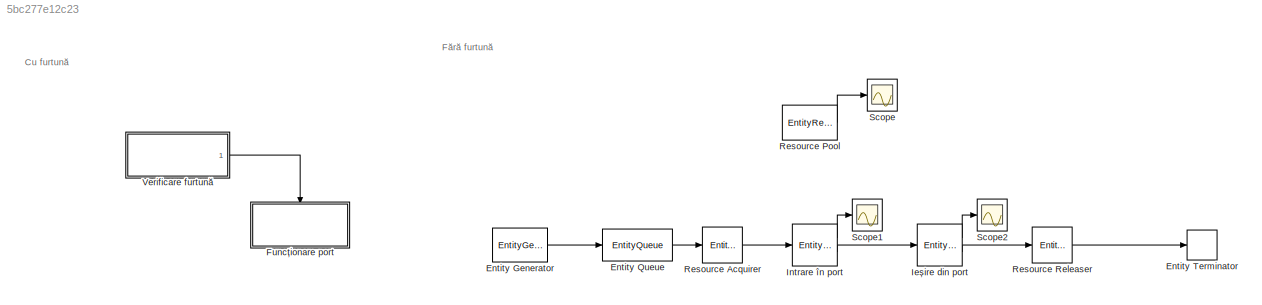
MODEL slx_5bc277e12c23
KIND model
CONFIG AbsTol = auto
CONFIG FixedStep = auto
CONFIG MaxStep = auto
CONFIG MinStep = auto
CONFIG RelTol = 1e-3
CONFIG SampleTimeConstraint = Unconstrained
CONFIG Solver = VariableStepDiscrete
CONFIG SolverMode = Auto
CONFIG SolverName = VariableStepDiscrete
CONFIG StartTime = 0.0
CONFIG StopTime = 168
BLOCK [EntityGenerator] Entity Generator
  EntityType = Structured
  EntityTypeName = Entity
  IntergenerationTimeAction = dt = rand(1.7 + 3 * rand);
  OutputPortMap = o3
  OutputPortMessageModes = m
  Ports = [0, 1]
  TimeSource = MATLAB action
BLOCK [EntityQueue] Entity Queue
  InputPortMap = u0
  InputPortMessageModes = m
  OutputPortMap = o5
  OutputPortMessageModes = m
  Ports = [1, 1]
BLOCK [EntityTerminator] Entity Terminator
  InputPortMap = u0
  InputPortMessageModes = m
  Ports = [1]
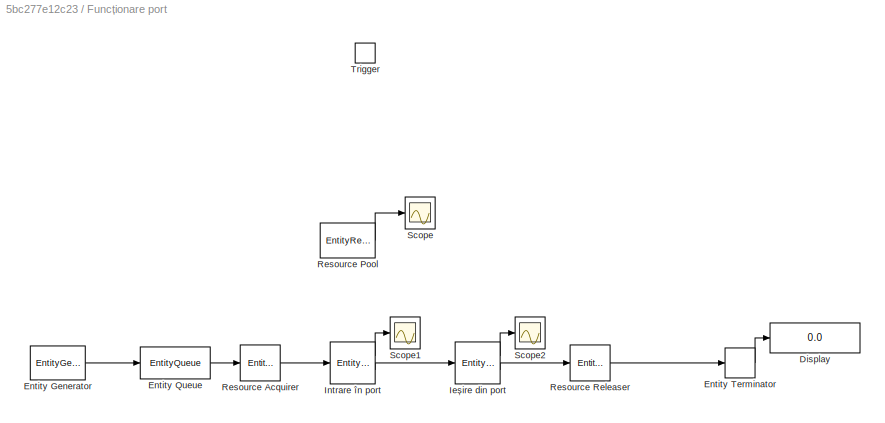
BLOCK [SubSystem] Funcționare port
  Ports = [0, 0, 0, 1]
  RequestExecContextInheritance = off
  TreatAsAtomicUnit = on
  Variant = off
BLOCK [Display] Funcționare port/Display
  Decimation = 1
  Ports = [1]
BLOCK [EntityGenerator] Funcționare port/Entity Generator
  EntityType = Structured
  EntityTypeName = Entity
  IntergenerationTimeAction = dt = rand(1.7 + 3 * rand);
  OutputPortMap = o3
  OutputPortMessageModes = m
  Ports = [0, 1]
  TimeSource = MATLAB action
BLOCK [EntityQueue] Funcționare port/Entity Queue
  InputPortMap = u0
  InputPortMessageModes = m
  OutputPortMap = o5
  OutputPortMessageModes = m
  Ports = [1, 1]
BLOCK [EntityTerminator] Funcționare port/Entity Terminator
  InputPortMap = u0
  InputPortMessageModes = m
  NumberEntitiesArrived = on
  OutputPortMap = o0
  Ports = [1, 1]
BLOCK [EntityServer] Funcționare port/Ieșire din port
  AverageWait = on
  Capacity = 3
  InputPortMap = u2
  InputPortMessageModes = m
  OutputPortMap = o4,o9
  OutputPortMessageModes = n,m
  Ports = [1, 2]
  ServiceTimeAction = dt = 7.4 + 3 * rand;
  ServiceTimeValue = 0.25
BLOCK [EntityServer] Funcționare port/Intrare în port
  AverageWait = on
  Capacity = 3
  InputPortMap = u2
  InputPortMessageModes = m
  OutputPortMap = o4,o9
  OutputPortMessageModes = n,m
  Ports = [1, 2]
  ServiceTimeAction = dt = 7.4 + 3 * rand;
  ServiceTimeSource = MATLAB action
BLOCK [EntityResourceAcquirer] Funcționare port/Resource Acquirer
  InputPortMap = u0
  InputPortMessageModes = m
  NumberWaitingEntities = 5
  OutputPortMap = o3
  OutputPortMessageModes = m
  Ports = [1, 1]
  ResourceName = Dane
BLOCK [EntityResourcePool] Funcționare port/Resource Pool
  AverageUtilization = on
  OutputPortMap = o1
  Ports = [0, 1]
  ResourceAmount = 3
  ResourceName = Dane
BLOCK [EntityResourceReleaser] Funcționare port/Resource Releaser
  InputPortMap = u0
  InputPortMessageModes = m
  OutputPortMap = o0
  OutputPortMessageModes = m
  Ports = [1, 1]
  ResourceName = Dane
  ResourceToRelease = Selected
BLOCK [Scope] Funcționare port/Scope
  Ports = [1]
  ScopeSpecificationString = C++SS(StrPVP('SaveName','ScopeData'),StrPVP('SaveName','ScopeData'),StrPVP('SaveName','ScopeData'))
BLOCK [Scope] Funcționare port/Scope1
  Ports = [1]
  ScopeSpecificationString = C++SS(StrPVP('SaveName','ScopeData'),StrPVP('SaveName','ScopeData1'),StrPVP('SaveName','ScopeData1'),StrPVP('SaveName','ScopeData1'))
BLOCK [Scope] Funcționare port/Scope2
  Ports = [1]
  ScopeSpecificationString = C++SS(StrPVP('SaveName','ScopeData'),StrPVP('SaveName','ScopeData1'),StrPVP('SaveName','ScopeData2'),StrPVP('SaveName','ScopeData2'),StrPVP('SaveName','ScopeData2'))
BLOCK [TriggerPort] Funcționare port/Trigger
  Ports = []
  StatesWhenEnabling = held
  VariantControl = Variant
BLOCK [EntityServer] Ieșire din port
  AverageWait = on
  Capacity = 3
  InputPortMap = u2
  InputPortMessageModes = m
  OutputPortMap = o4,o9
  OutputPortMessageModes = n,m
  Ports = [1, 2]
  ServiceTimeAction = dt = 7.4 + 3 * rand;
  ServiceTimeValue = 0.25
BLOCK [EntityServer] Intrare în port
  AverageWait = on
  Capacity = 3
  InputPortMap = u2
  InputPortMessageModes = m
  OutputPortMap = o4,o9
  OutputPortMessageModes = n,m
  Ports = [1, 2]
  ServiceTimeAction = dt = 6.9 + 3 * rand;
  ServiceTimeSource = MATLAB action
BLOCK [EntityResourceAcquirer] Resource Acquirer
  InputPortMap = u0
  InputPortMessageModes = m
  NumberWaitingEntities = 5
  OutputPortMap = o3
  OutputPortMessageModes = m
  Ports = [1, 1]
  ResourceName = Dane
BLOCK [EntityResourcePool] Resource Pool
  AverageUtilization = on
  OutputPortMap = o1
  Ports = [0, 1]
  ResourceAmount = 3
  ResourceName = Dane
BLOCK [EntityResourceReleaser] Resource Releaser
  InputPortMap = u0
  InputPortMessageModes = m
  OutputPortMap = o0
  OutputPortMessageModes = m
  Ports = [1, 1]
  ResourceName = Dane
  ResourceToRelease = Selected
BLOCK [Scope] Scope
  Ports = [1]
  ScopeSpecificationString = C++SS(StrPVP('SaveName','ScopeData'),StrPVP('SaveName','ScopeData'),StrPVP('SaveName','ScopeData'),StrPVP('SaveName','ScopeData3'))
BLOCK [Scope] Scope1
  Ports = [1]
  ScopeSpecificationString = C++SS(StrPVP('SaveName','ScopeData'),StrPVP('SaveName','ScopeData1'),StrPVP('SaveName','ScopeData1'),StrPVP('SaveName','ScopeData1'),StrPVP('SaveName','ScopeData4'))
BLOCK [Scope] Scope2
  Ports = [1]
  ScopeSpecificationString = C++SS(StrPVP('SaveName','ScopeData'),StrPVP('SaveName','ScopeData1'),StrPVP('SaveName','ScopeData2'),StrPVP('SaveName','ScopeData2'),StrPVP('SaveName','ScopeData2'),StrPVP('SaveName','ScopeData5'))
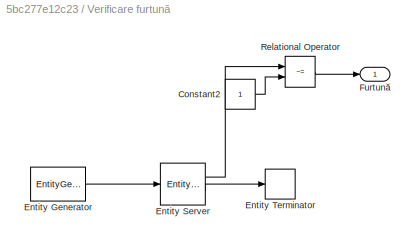
BLOCK [SubSystem] Verificare furtună
  Ports = [0, 1]
  RequestExecContextInheritance = off
  Variant = off
BLOCK [Constant] Verificare furtună/Constant2
BLOCK [EntityGenerator] Verificare furtună/Entity Generator
  EntityType = Structured
  EntityTypeName = Entity
  IntergenerationTimeAction = dt = 44 + 8*rand;
  OutputPortMap = o3
  OutputPortMessageModes = m
  Ports = [0, 1]
  TimeSource = MATLAB action
BLOCK [EntityServer] Verificare furtună/Entity Server
  Capacity = 1
  InputPortMap = u2
  InputPortMessageModes = m
  NumberEntitiesInBlock = on
  OutputPortMap = o1,o9
  OutputPortMessageModes = n,m
  Ports = [1, 2]
  ServiceTimeAction = dt = 2 + 4*rand;
  ServiceTimeSource = MATLAB action
BLOCK [EntityTerminator] Verificare furtună/Entity Terminator
  InputPortMap = u0
  InputPortMessageModes = m
  Ports = [1]
BLOCK [Outport] Verificare furtună/Furtună
  IconDisplay = Port number
BLOCK [RelationalOperator] Verificare furtună/Relational Operator
  InputSameDT = off
  Operator = ~=
  OutDataTypeStr = boolean
  Ports = [2, 1]
ANNOTATION (root): Cu furtună
ANNOTATION (root): Fără furtună
LINE Entity Generator:1 -> Entity Queue:1
LINE Entity Queue:1 -> Resource Acquirer:1
LINE Funcționare port/Entity Generator:1 -> Funcționare port/Entity Queue:1
LINE Funcționare port/Entity Queue:1 -> Funcționare port/Resource Acquirer:1
LINE Funcționare port/Entity Terminator:1 -> Funcționare port/Display:1
LINE Funcționare port/Ieșire din port:1 -> Funcționare port/Scope2:1
LINE Funcționare port/Ieșire din port:2 -> Funcționare port/Resource Releaser:1
LINE Funcționare port/Intrare în port:1 -> Funcționare port/Scope1:1
LINE Funcționare port/Intrare în port:2 -> Funcționare port/Ieșire din port:1
LINE Funcționare port/Resource Acquirer:1 -> Funcționare port/Intrare în port:1
LINE Funcționare port/Resource Pool:1 -> Funcționare port/Scope:1
LINE Funcționare port/Resource Releaser:1 -> Funcționare port/Entity Terminator:1
LINE Ieșire din port:1 -> Scope2:1
LINE Ieșire din port:2 -> Resource Releaser:1
LINE Intrare în port:1 -> Scope1:1
LINE Intrare în port:2 -> Ieșire din port:1
LINE Resource Acquirer:1 -> Intrare în port:1
LINE Resource Pool:1 -> Scope:1
LINE Resource Releaser:1 -> Entity Terminator:1
LINE Verificare furtună/Constant2:1 -> Verificare furtună/Relational Operator:2
LINE Verificare furtună/Entity Generator:1 -> Verificare furtună/Entity Server:1
LINE Verificare furtună/Entity Server:1 -> Verificare furtună/Relational Operator:1
LINE Verificare furtună/Entity Server:2 -> Verificare furtună/Entity Terminator:1
LINE Verificare furtună/Relational Operator:1 -> Verificare furtună/Furtună:1
LINE Verificare furtună:1 -> Funcționare port:trigger
